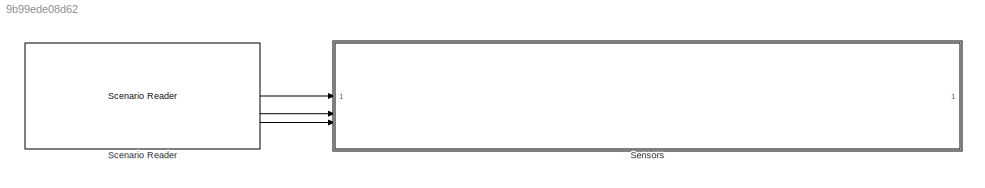
MODEL slx_9b99ede08d62
KIND model
CONFIG AbsTol = auto
CONFIG EnableMultiTasking = off
CONFIG FixedStep = auto
CONFIG MaxStep = auto
CONFIG MinStep = auto
CONFIG RelTol = 1e-3
CONFIG SampleTimeConstraint = Unconstrained
CONFIG SolverName = FixedStepDiscrete
CONFIG StartTime = 0.0
CONFIG StopTime = 10.0
WORKSPACE source: mxarray member
WORKSPACE firstWarning = 1
WORKSPACE originalScenarioChecksum = 'CA9770AAA36CFFEF06F2135ABF4DE208'
BLOCK [Reference] Scenario Reader  REF=drivingscenarioandsensors/Scenario Reader
  SourceBlock = drivingscenarioandsensors/Scenario Reader
  SourceType = driving.scenario.internal.ScenarioReader
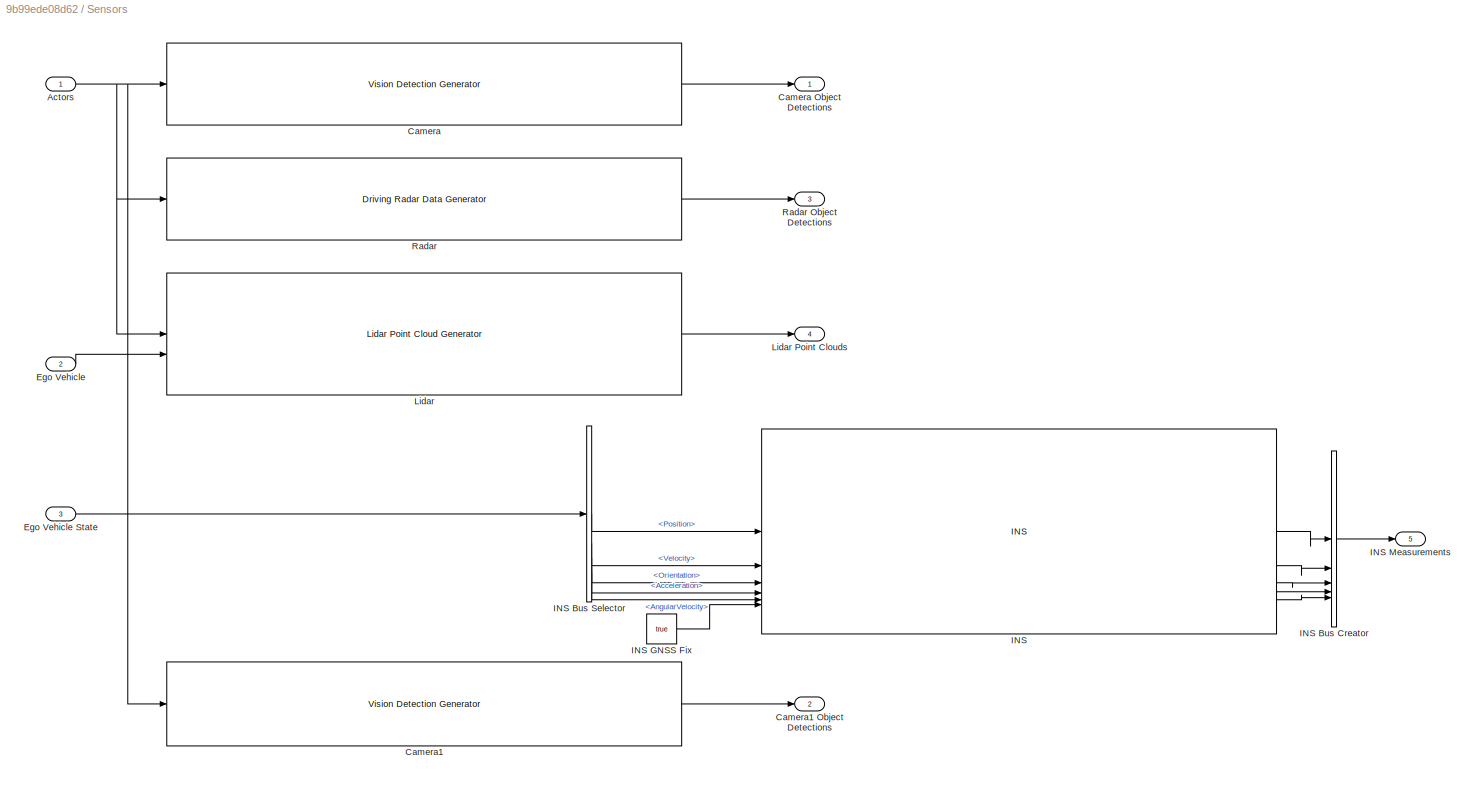
BLOCK [SubSystem] Sensors
BLOCK [Inport] Sensors/Actors
BLOCK [Reference] Sensors/Camera  REF=drivingscenarioandsensors/Vision Detection Generator
  SourceBlock = drivingscenarioandsensors/Vision Detection Generator
  SourceType = visionDetectionGenerator
BLOCK [Outport] Sensors/Camera Object Detections
BLOCK [Reference] Sensors/Camera1  REF=drivingscenarioandsensors/Vision Detection Generator
  SourceBlock = drivingscenarioandsensors/Vision Detection Generator
  SourceType = visionDetectionGenerator
BLOCK [Outport] Sensors/Camera1 Object Detections
  Port = 2
BLOCK [Inport] Sensors/Ego Vehicle
  Port = 2
BLOCK [Inport] Sensors/Ego Vehicle State
  Port = 3
BLOCK [Reference] Sensors/INS  REF=sensorinslib/INS
  LibrarySourceBlock = drivingscenarioandsensors/INS
  SourceBlock = sensorinslib/INS
  SourceType = fusion.internal.simulink.insSensor
BLOCK [BusCreator] Sensors/INS Bus Creator
  InheritFromInputs = on
  Inputs = 5
BLOCK [BusSelector] Sensors/INS Bus Selector
  OutputSignals = Position,Velocity,Orientation,Acceleration,AngularVelocity
BLOCK [Constant] Sensors/INS GNSS Fix
  Value = true
BLOCK [Outport] Sensors/INS Measurements
  Port = 5
BLOCK [Reference] Sensors/Lidar  REF=drivingscenarioandsensors/Lidar Point Cloud Generator
  SourceBlock = drivingscenarioandsensors/Lidar Point Cloud Generator
  SourceType = lidarPointCloudGenerator
BLOCK [Outport] Sensors/Lidar Point Clouds
  Port = 4
BLOCK [Reference] Sensors/Radar  REF=drivingscenarioandsensors/Driving Radar Data Generator
  SourceBlock = drivingscenarioandsensors/Driving Radar Data Generator
  SourceType = drivingRadarDataGenerator
BLOCK [Outport] Sensors/Radar Object Detections
  Port = 3
LINE Scenario Reader:1 -> Sensors:1
LINE Scenario Reader:2 -> Sensors:2
LINE Scenario Reader:3 -> Sensors:3
NET Sensors/Actors:1 -> Sensors/Camera1:1, Sensors/Camera:1, Sensors/Lidar:1, Sensors/Radar:1
LINE Sensors/Camera1:1 -> Sensors/Camera1 Object Detections:1
LINE Sensors/Camera:1 -> Sensors/Camera Object Detections:1
LINE Sensors/Ego Vehicle State:1 -> Sensors/INS Bus Selector:1
LINE Sensors/Ego Vehicle:1 -> Sensors/Lidar:2
LINE Sensors/INS Bus Creator:1 -> Sensors/INS Measurements:1
LINE Sensors/INS Bus Selector:1 -> Sensors/INS:1
LINE Sensors/INS Bus Selector:2 -> Sensors/INS:2
LINE Sensors/INS Bus Selector:3 -> Sensors/INS:3
LINE Sensors/INS Bus Selector:4 -> Sensors/INS:4
LINE Sensors/INS Bus Selector:5 -> Sensors/INS:5
LINE Sensors/INS GNSS Fix:1 -> Sensors/INS:6
LINE Sensors/INS:1 -> Sensors/INS Bus Creator:1
LINE Sensors/INS:2 -> Sensors/INS Bus Creator:2
LINE Sensors/INS:3 -> Sensors/INS Bus Creator:3
LINE Sensors/INS:4 -> Sensors/INS Bus Creator:4
LINE Sensors/INS:5 -> Sensors/INS Bus Creator:5
LINE Sensors/Lidar:1 -> Sensors/Lidar Point Clouds:1
LINE Sensors/Radar:1 -> Sensors/Radar Object Detections:1
note: NET lines group one-source signal fan-out (src -> all destinations, sorted); 1:1 wires keep LINE
